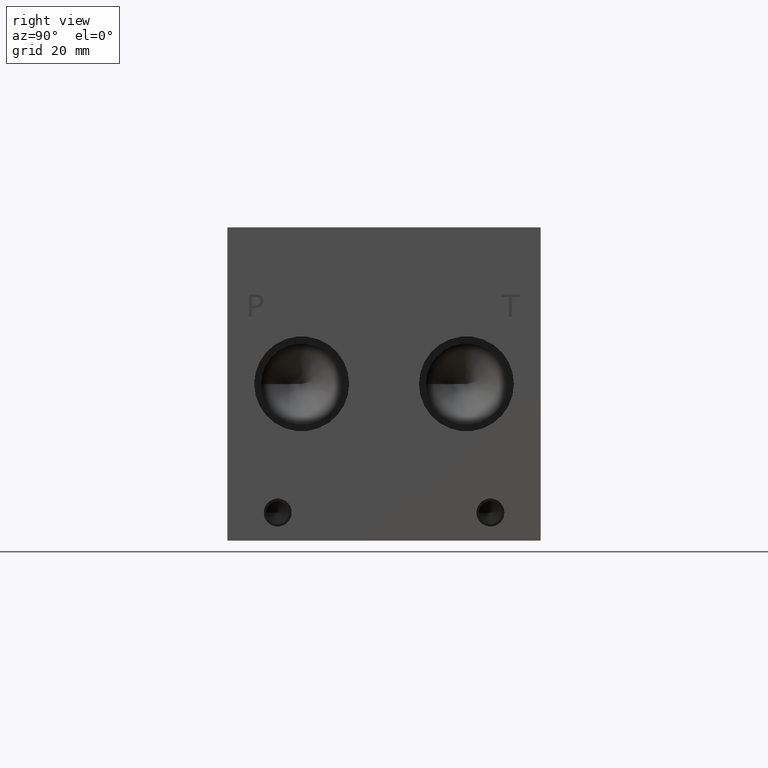
[diagram: clean part render]
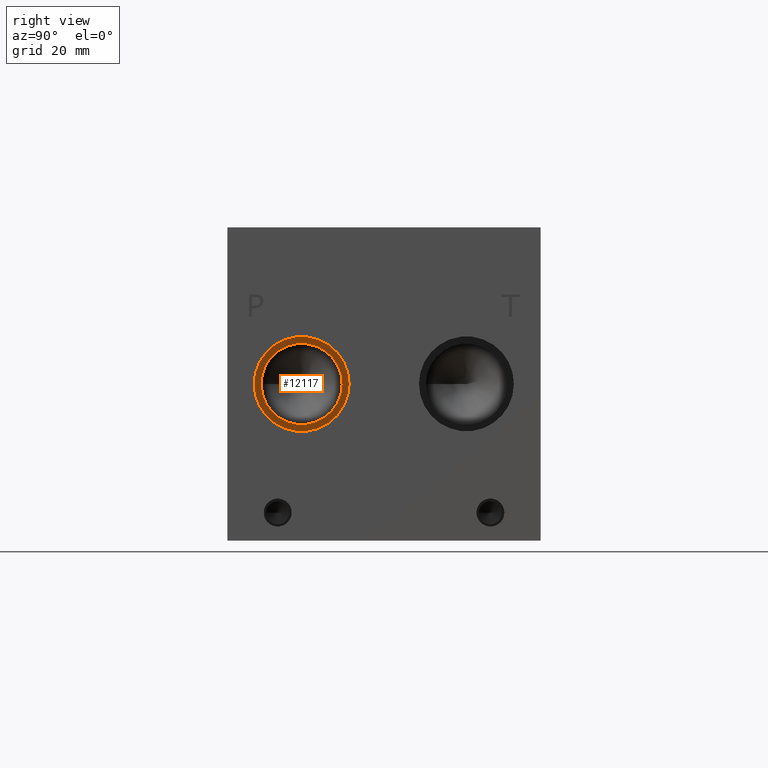
[diagram: same view with one face highlighted and labeled with its STEP entity id]
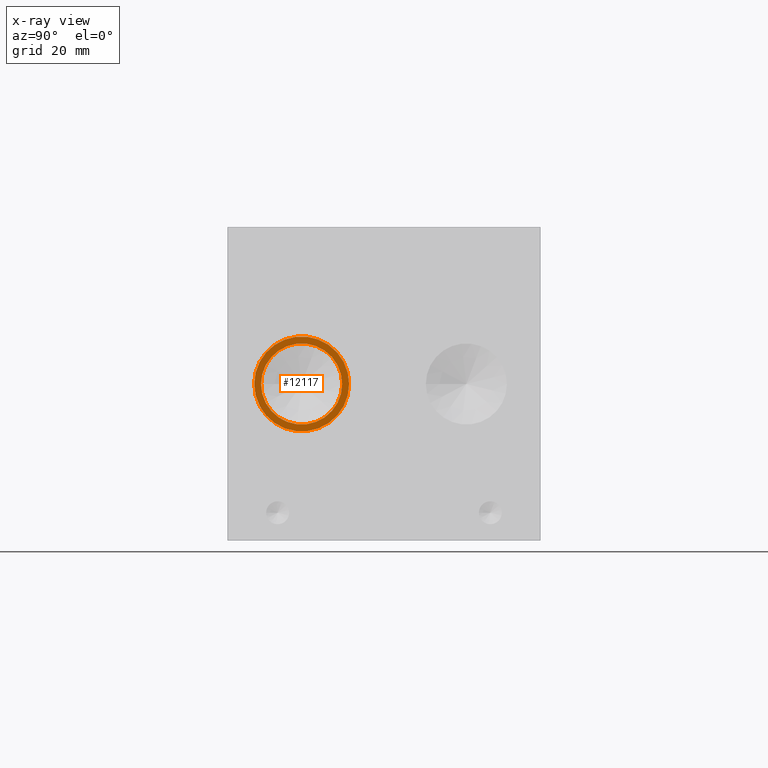
[diagram: x-ray of the same camera — body ghosted, the highlighted face saturated]
A machine part, right view. The second image highlights one B-rep face of the part: STEP entity #12117.
The next image is the same camera in x-ray: the body ghosted, the highlighted face saturated — about 0% of this face is hidden behind the body in this view.
In plain terms, the highlighted planar face has unit normal (1, 0, 0).
Its self-contained STEP definition (entity closure, byte-faithful):
#198=CIRCLE('',#12676,13.462);
#199=CIRCLE('',#12677,13.462);
#200=CIRCLE('',#12678,11.5062);
#379=FACE_BOUND('',#2172,.T.);
#1478=FACE_OUTER_BOUND('',#2171,.T.);
#2171=EDGE_LOOP('',(#10342,#10343));
#2172=EDGE_LOOP('',(#10344));
#5554=VERTEX_POINT('',#20636);
#5555=VERTEX_POINT('',#20637);
#5556=VERTEX_POINT('',#20640);
#7196=EDGE_CURVE('',#5554,#5555,#198,.T.);
#7197=EDGE_CURVE('',#5555,#5554,#199,.T.);
#7198=EDGE_CURVE('',#5556,#5556,#200,.T.);
#10342=ORIENTED_EDGE('',*,*,#7196,.T.);
#10343=ORIENTED_EDGE('',*,*,#7197,.T.);
#10344=ORIENTED_EDGE('',*,*,#7198,.F.);
#11060=PLANE('',#12675);
#12117=ADVANCED_FACE('',(#1478,#379),#11060,.T.);
#12675=AXIS2_PLACEMENT_3D('',#20635,#14874,#14875);
#12676=AXIS2_PLACEMENT_3D('',#20638,#14876,#14877);
#12677=AXIS2_PLACEMENT_3D('',#20639,#14878,#14879);
#12678=AXIS2_PLACEMENT_3D('',#20641,#14880,#14881);
#14874=DIRECTION('center_axis',(1.,0.,0.));
#14875=DIRECTION('ref_axis',(0.,1.,0.));
#14876=DIRECTION('center_axis',(1.,0.,0.));
#14877=DIRECTION('ref_axis',(0.,1.,0.));
#14878=DIRECTION('center_axis',(1.,0.,0.));
#14879=DIRECTION('ref_axis',(0.,1.,0.));
#14880=DIRECTION('center_axis',(1.,0.,0.));
#14881=DIRECTION('ref_axis',(0.,1.,0.));
#20635=CARTESIAN_POINT('Origin',(149.2504,21.082,44.45));
#20636=CARTESIAN_POINT('',(149.2504,34.544,44.45));
#20637=CARTESIAN_POINT('',(149.2504,7.62,44.45));
#20638=CARTESIAN_POINT('Origin',(149.2504,21.082,44.45));
#20639=CARTESIAN_POINT('Origin',(149.2504,21.082,44.45));
#20640=CARTESIAN_POINT('',(149.2504,9.5758,44.45));
#20641=CARTESIAN_POINT('Origin',(149.2504,21.082,44.45));